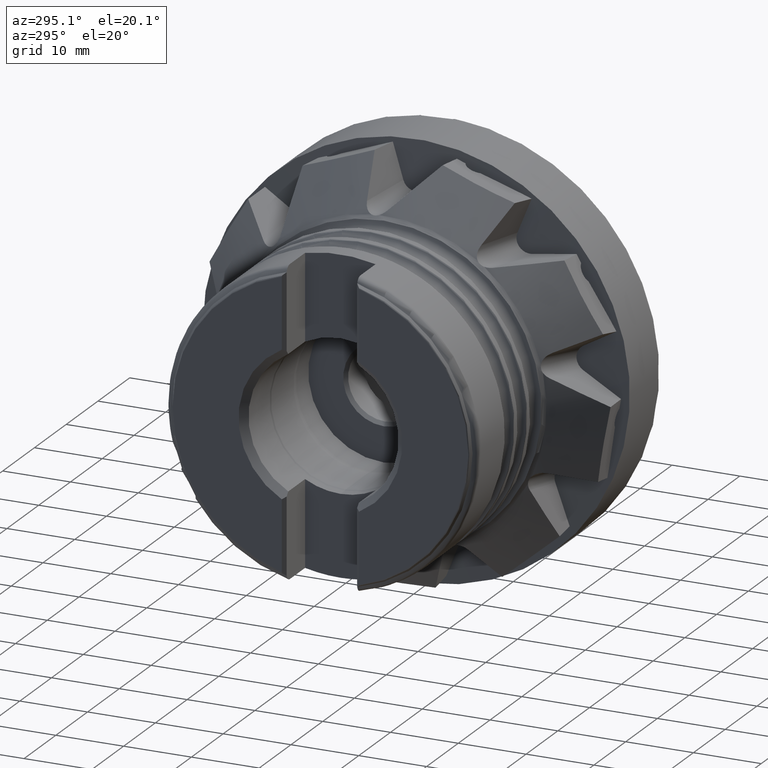
[diagram: clean part render]
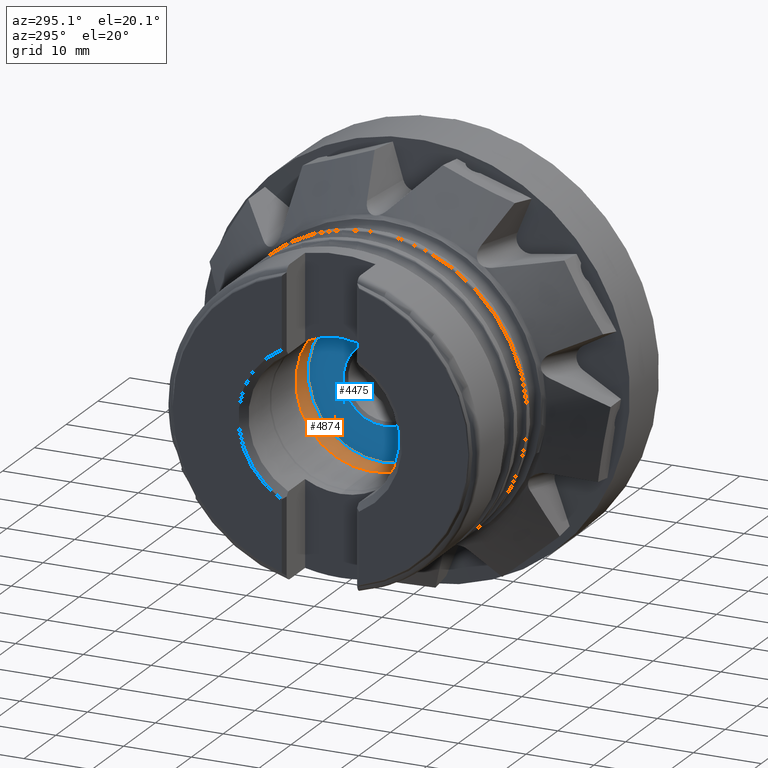
[diagram: same view with the hole feature highlighted: cylindrical wall and planar end face, labeled with their STEP entity ids]
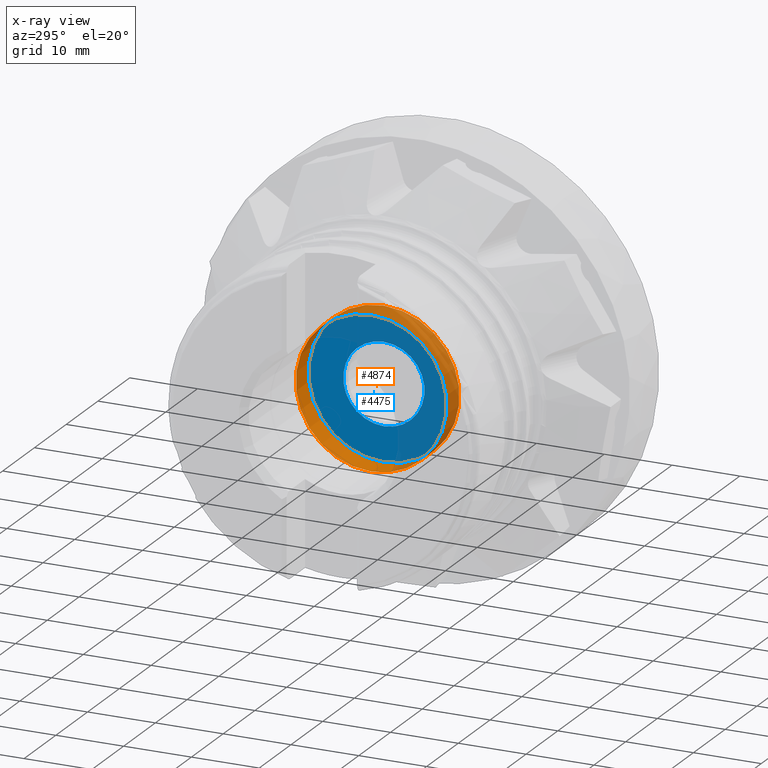
[diagram: x-ray of the same camera — body ghosted, the hole faces saturated]
A machine part, auxiliary view. The highlighted faces form one hole feature of diameter 22.3 mm: the cylindrical wall (entity #4874, orange) and its adjacent planar end face (entity #4475, blue) — they share a circular edge in the B-rep.
The next image is the same camera in x-ray (body ghosted, the hole faces saturated) — the bore reads through the body.
Wall:
#267 = CIRCLE ( 'NONE', #6588, 11.14999999999999700 ) ;
#405 = EDGE_CURVE ( 'NONE', #3541, #3541, #1884, .T. ) ;
#573 = ORIENTED_EDGE ( 'NONE', *, *, #2497, .T. ) ;
#611 = DIRECTION ( 'NONE',  ( 0.0000000000000000000, 0.0000000000000000000, -1.000000000000000000 ) ) ;
#934 = DIRECTION ( 'NONE',  ( 1.000000000000000000, -0.0000000000000000000, -0.0000000000000000000 ) ) ;
#1884 = CIRCLE ( 'NONE', #3331, 11.14999999999999700 ) ;
#1945 = AXIS2_PLACEMENT_3D ( 'NONE', #7166, #3762, #2446 ) ;
#2446 = DIRECTION ( 'NONE',  ( 0.0000000000000000000, 0.0000000000000000000, -1.000000000000000000 ) ) ;
#2497 = EDGE_CURVE ( 'NONE', #4748, #4748, #267, .T. ) ;
#2553 = EDGE_LOOP ( 'NONE', ( #573 ) ) ;
#3331 = AXIS2_PLACEMENT_3D ( 'NONE', #4961, #4845, #611 ) ;
#3541 = VERTEX_POINT ( 'NONE', #3609 ) ;
#3609 = CARTESIAN_POINT ( 'NONE',  ( -23.33269454164237500, 0.0000000000000000000, -11.14999999999999700 ) ) ;
#3621 = FACE_OUTER_BOUND ( 'NONE', #2553, .T. ) ;
#3762 = DIRECTION ( 'NONE',  ( 1.000000000000000000, -0.0000000000000000000, -0.0000000000000000000 ) ) ;
#4748 = VERTEX_POINT ( 'NONE', #8400 ) ;
#4845 = DIRECTION ( 'NONE',  ( 1.000000000000000000, -0.0000000000000000000, -0.0000000000000000000 ) ) ;
#4874 = ADVANCED_FACE ( 'NONE', ( #8649, #3621 ), #8417, .F. ) ;
#4961 = CARTESIAN_POINT ( 'NONE',  ( -23.33269454164237500, 0.0000000000000000000, 0.0000000000000000000 ) ) ;
#4985 = CARTESIAN_POINT ( 'NONE',  ( -19.39999999999999900, 0.0000000000000000000, 0.0000000000000000000 ) ) ;
#5168 = EDGE_LOOP ( 'NONE', ( #6535 ) ) ;
#5653 = DIRECTION ( 'NONE',  ( 0.0000000000000000000, 0.0000000000000000000, -1.000000000000000000 ) ) ;
#6535 = ORIENTED_EDGE ( 'NONE', *, *, #405, .F. ) ;
#6588 = AXIS2_PLACEMENT_3D ( 'NONE', #4985, #934, #5653 ) ;
#7166 = CARTESIAN_POINT ( 'NONE',  ( 0.0000000000000000000, 0.0000000000000000000, 0.0000000000000000000 ) ) ;
#8400 = CARTESIAN_POINT ( 'NONE',  ( -19.39999999999999900, 0.0000000000000000000, -11.14999999999999700 ) ) ;
#8417 = CYLINDRICAL_SURFACE ( 'NONE', #1945, 11.14999999999999700 ) ;
#8649 = FACE_OUTER_BOUND ( 'NONE', #5168, .T. ) ;
End face:
#267 = CIRCLE ( 'NONE', #6588, 11.14999999999999700 ) ;
#672 = FACE_OUTER_BOUND ( 'NONE', #5726, .T. ) ;
#934 = DIRECTION ( 'NONE',  ( 1.000000000000000000, -0.0000000000000000000, -0.0000000000000000000 ) ) ;
#1208 = AXIS2_PLACEMENT_3D ( 'NONE', #6964, #1537, #8348 ) ;
#1537 = DIRECTION ( 'NONE',  ( 1.000000000000000000, 0.0000000000000000000, -0.0000000000000000000 ) ) ;
#1887 = VERTEX_POINT ( 'NONE', #8469 ) ;
#2347 = CARTESIAN_POINT ( 'NONE',  ( -19.39999999999999900, 0.0000000000000000000, 0.0000000000000000000 ) ) ;
#2497 = EDGE_CURVE ( 'NONE', #4748, #4748, #267, .T. ) ;
#2760 = CIRCLE ( 'NONE', #5797, 6.000000000000005300 ) ;
#3027 = DIRECTION ( 'NONE',  ( 0.0000000000000000000, 0.0000000000000000000, -1.000000000000000000 ) ) ;
#4475 = ADVANCED_FACE ( 'NONE', ( #6048, #672 ), #7660, .F. ) ;
#4748 = VERTEX_POINT ( 'NONE', #8400 ) ;
#4985 = CARTESIAN_POINT ( 'NONE',  ( -19.39999999999999900, 0.0000000000000000000, 0.0000000000000000000 ) ) ;
#5653 = DIRECTION ( 'NONE',  ( 0.0000000000000000000, 0.0000000000000000000, -1.000000000000000000 ) ) ;
#5726 = EDGE_LOOP ( 'NONE', ( #6549 ) ) ;
#5797 = AXIS2_PLACEMENT_3D ( 'NONE', #2347, #7074, #3027 ) ;
#6048 = FACE_BOUND ( 'NONE', #8671, .T. ) ;
#6458 = EDGE_CURVE ( 'NONE', #1887, #1887, #2760, .T. ) ;
#6549 = ORIENTED_EDGE ( 'NONE', *, *, #2497, .F. ) ;
#6588 = AXIS2_PLACEMENT_3D ( 'NONE', #4985, #934, #5653 ) ;
#6964 = CARTESIAN_POINT ( 'NONE',  ( -19.39999999999999900, 5.499999999999997300, 0.0000000000000000000 ) ) ;
#7074 = DIRECTION ( 'NONE',  ( 1.000000000000000000, -0.0000000000000000000, -0.0000000000000000000 ) ) ;
#7660 = PLANE ( 'NONE',  #1208 ) ;
#7942 = ORIENTED_EDGE ( 'NONE', *, *, #6458, .T. ) ;
#8348 = DIRECTION ( 'NONE',  ( -0.0000000000000000000, 0.0000000000000000000, -1.000000000000000000 ) ) ;
#8400 = CARTESIAN_POINT ( 'NONE',  ( -19.39999999999999900, 0.0000000000000000000, -11.14999999999999700 ) ) ;
#8469 = CARTESIAN_POINT ( 'NONE',  ( -19.39999999999999900, 0.0000000000000000000, -6.000000000000005300 ) ) ;
#8671 = EDGE_LOOP ( 'NONE', ( #7942 ) ) ;